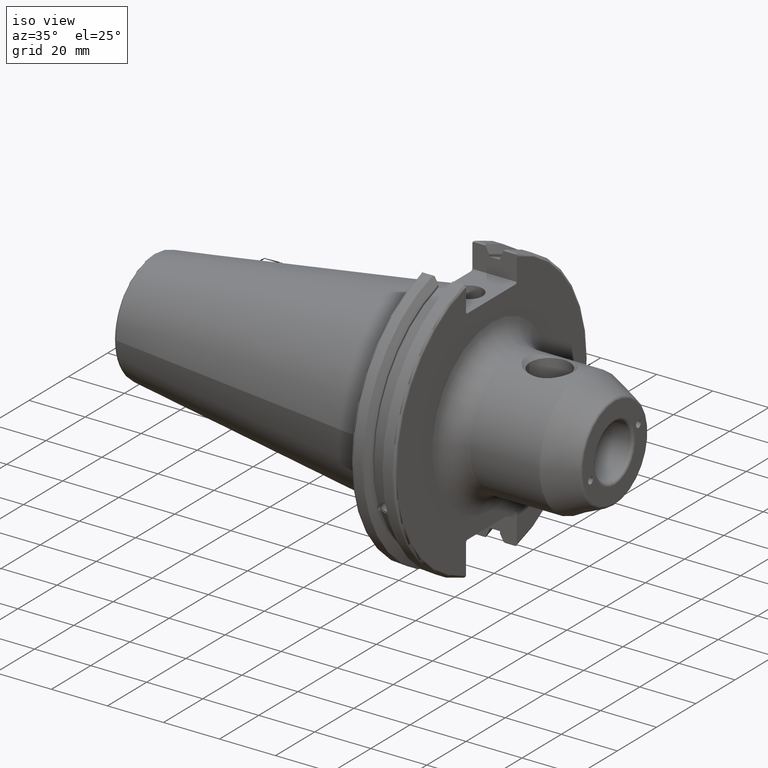
[diagram: clean part render]
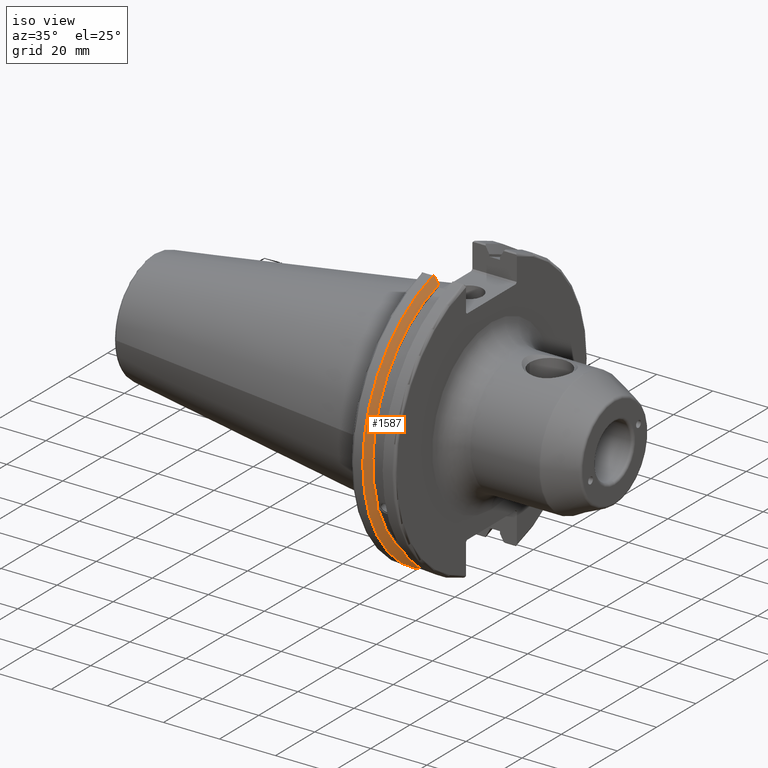
[diagram: same view with one face highlighted and labeled with its STEP entity id]
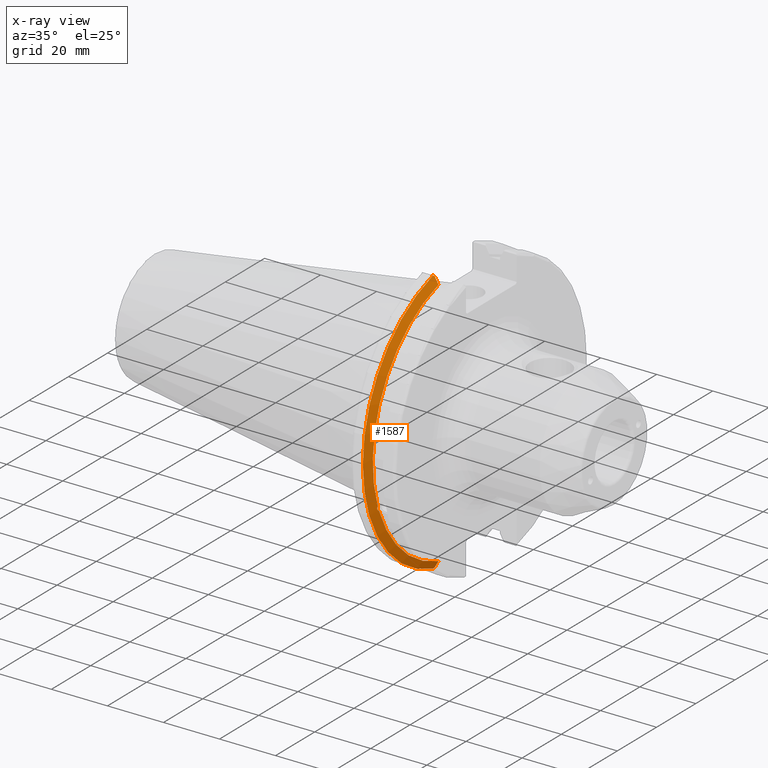
[diagram: x-ray of the same camera — body ghosted, the highlighted face saturated]
A machine part, iso view. The second image highlights one B-rep face of the part: STEP entity #1587.
The next image is the same camera in x-ray: the body ghosted, the highlighted face saturated — about 0% of this face is hidden behind the body in this view.
In plain terms, the highlighted conical surface has half-angle 60 deg.
Its self-contained STEP definition (entity closure, byte-faithful):
#24=(
BOUNDED_CURVE()
B_SPLINE_CURVE(2,(#3164,#3165,#3166),.UNSPECIFIED.,.F.,.F.)
B_SPLINE_CURVE_WITH_KNOTS((3,3),(0.,0.275823910674838),.UNSPECIFIED.)
CURVE()
GEOMETRIC_REPRESENTATION_ITEM()
RATIONAL_B_SPLINE_CURVE((1.,1.00038235573924,1.00012873636598))
REPRESENTATION_ITEM('')
);
#25=(
BOUNDED_CURVE()
B_SPLINE_CURVE(2,(#3176,#3177,#3178),.UNSPECIFIED.,.F.,.F.)
B_SPLINE_CURVE_WITH_KNOTS((3,3),(0.0558332664495948,0.331657177124508),
 .UNSPECIFIED.)
CURVE()
GEOMETRIC_REPRESENTATION_ITEM()
RATIONAL_B_SPLINE_CURVE((1.00012873636704,1.00038235574237,1.))
REPRESENTATION_ITEM('')
);
#26=(
BOUNDED_CURVE()
B_SPLINE_CURVE(2,(#3211,#3212,#3213),.UNSPECIFIED.,.F.,.F.)
B_SPLINE_CURVE_WITH_KNOTS((3,3),(0.,0.0648240472896605),.UNSPECIFIED.)
CURVE()
GEOMETRIC_REPRESENTATION_ITEM()
RATIONAL_B_SPLINE_CURVE((1.,1.00011477674868,1.00019140646002))
REPRESENTATION_ITEM('')
);
#27=(
BOUNDED_CURVE()
B_SPLINE_CURVE(2,(#3219,#3220,#3221),.UNSPECIFIED.,.F.,.F.)
B_SPLINE_CURVE_WITH_KNOTS((3,3),(0.325260944932437,0.390084992222203),
 .UNSPECIFIED.)
CURVE()
GEOMETRIC_REPRESENTATION_ITEM()
RATIONAL_B_SPLINE_CURVE((1.00019140645964,1.00011477674846,1.))
REPRESENTATION_ITEM('')
);
#51=CONICAL_SURFACE('',#1768,47.8172386482472,1.0471975511966);
#148=CIRCLE('',#1687,46.4219772964944);
#170=CIRCLE('',#1734,49.2125);
#182=CIRCLE('',#1769,46.4219772964944);
#263=FACE_OUTER_BOUND('',#371,.T.);
#371=EDGE_LOOP('',(#1435,#1436,#1437,#1438,#1439,#1440,#1441,#1442));
#404=B_SPLINE_CURVE_WITH_KNOTS('',3,(#2706,#2707,#2708,#2709,#2710,#2711,
#2712,#2713,#2714,#2715,#2716,#2717,#2718,#2719),.UNSPECIFIED.,.F.,.F.,
(4,2,2,2,2,2,4),(0.426712868358721,0.441644498666905,0.480313313223129,
0.518982127779353,0.557650942335576,0.5963197568918,0.611251387199984),
 .UNSPECIFIED.);
#677=VERTEX_POINT('',#2703);
#678=VERTEX_POINT('',#2705);
#695=VERTEX_POINT('',#2796);
#755=VERTEX_POINT('',#3161);
#756=VERTEX_POINT('',#3163);
#759=VERTEX_POINT('',#3175);
#763=VERTEX_POINT('',#3209);
#764=VERTEX_POINT('',#3215);
#853=EDGE_CURVE('',#678,#677,#404,.T.);
#876=EDGE_CURVE('',#678,#695,#148,.T.);
#956=EDGE_CURVE('',#756,#755,#24,.T.);
#962=EDGE_CURVE('',#759,#695,#25,.T.);
#970=EDGE_CURVE('',#763,#755,#26,.T.);
#972=EDGE_CURVE('',#763,#764,#170,.T.);
#973=EDGE_CURVE('',#759,#764,#27,.T.);
#1006=EDGE_CURVE('',#756,#677,#182,.T.);
#1435=ORIENTED_EDGE('',*,*,#853,.T.);
#1436=ORIENTED_EDGE('',*,*,#1006,.F.);
#1437=ORIENTED_EDGE('',*,*,#956,.T.);
#1438=ORIENTED_EDGE('',*,*,#970,.F.);
#1439=ORIENTED_EDGE('',*,*,#972,.T.);
#1440=ORIENTED_EDGE('',*,*,#973,.F.);
#1441=ORIENTED_EDGE('',*,*,#962,.T.);
#1442=ORIENTED_EDGE('',*,*,#876,.F.);
#1587=ADVANCED_FACE('',(#263),#51,.T.);
#1687=AXIS2_PLACEMENT_3D('',#2797,#1951,#1952);
#1734=AXIS2_PLACEMENT_3D('',#3217,#2088,#2089);
#1768=AXIS2_PLACEMENT_3D('',#3314,#2171,#2172);
#1769=AXIS2_PLACEMENT_3D('',#3315,#2173,#2174);
#1951=DIRECTION('center_axis',(1.,0.,0.));
#1952=DIRECTION('ref_axis',(0.,0.,-1.));
#2088=DIRECTION('center_axis',(1.,0.,0.));
#2089=DIRECTION('ref_axis',(0.,0.,-1.));
#2171=DIRECTION('center_axis',(-1.,0.,0.));
#2172=DIRECTION('ref_axis',(0.,-1.,-1.22464679914735E-16));
#2173=DIRECTION('center_axis',(1.,0.,0.));
#2174=DIRECTION('ref_axis',(0.,0.,-1.));
#2703=CARTESIAN_POINT('',(9.21200000000001,-43.9096390749305,-15.0646464421033));
#2705=CARTESIAN_POINT('',(9.21200000000001,-43.3201030900029,-16.6843832486479));
#2706=CARTESIAN_POINT('Ctrl Pts',(9.212,-43.3201030900029,-16.6843832486479));
#2707=CARTESIAN_POINT('Ctrl Pts',(9.19501843903392,-43.3613106941341,-16.6592273018006));
#2708=CARTESIAN_POINT('Ctrl Pts',(9.17898675403323,-43.4012416983557,-16.6326763251437));
#2709=CARTESIAN_POINT('Ctrl Pts',(9.12528673845038,-43.539103734322,-16.5325130832406));
#2710=CARTESIAN_POINT('Ctrl Pts',(9.08911610663556,-43.6406982153491,-16.4411807953719));
#2711=CARTESIAN_POINT('Ctrl Pts',(9.03980868251976,-43.8110833825827,-16.2291323464527));
#2712=CARTESIAN_POINT('Ctrl Pts',(9.027,-43.8794096049168,-16.10796730316));
#2713=CARTESIAN_POINT('Ctrl Pts',(9.027,-43.9675796948952,-15.8657219718732));
#2714=CARTESIAN_POINT('Ctrl Pts',(9.03980868251976,-43.9931221605126,-15.7289849146254));
#2715=CARTESIAN_POINT('Ctrl Pts',(9.08911610663556,-43.9989016655819,-15.4570249042867));
#2716=CARTESIAN_POINT('Ctrl Pts',(9.12528673845038,-43.9797830409458,-15.3217566390708));
#2717=CARTESIAN_POINT('Ctrl Pts',(9.17898675403323,-43.9385582852181,-15.1564111356409));
#2718=CARTESIAN_POINT('Ctrl Pts',(9.19501843903392,-43.9250360001461,-15.1104047527575));
#2719=CARTESIAN_POINT('Ctrl Pts',(9.212,-43.9096390749305,-15.0646464421033));
#2796=CARTESIAN_POINT('',(9.21200000000001,-12.95,-44.5791147973604));
#2797=CARTESIAN_POINT('Origin',(9.21200000000001,0.,0.));
#3161=CARTESIAN_POINT('',(7.87928960562423,-12.95,46.9780755322918));
#3163=CARTESIAN_POINT('',(9.21200000000001,-12.95,44.5791147973604));
#3164=CARTESIAN_POINT('Ctrl Pts',(9.21200000000001,-12.95,44.5791147973604));
#3165=CARTESIAN_POINT('Ctrl Pts',(8.56310449055921,-12.95,45.7494966802136));
#3166=CARTESIAN_POINT('Ctrl Pts',(7.87928960562423,-12.95,46.9780755322918));
#3175=CARTESIAN_POINT('',(7.87928960562424,-12.95,-46.9780755322918));
#3176=CARTESIAN_POINT('Ctrl Pts',(7.87928960562424,-12.95,-46.9780755322918));
#3177=CARTESIAN_POINT('Ctrl Pts',(8.56310449055802,-12.95,-45.7494966802158));
#3178=CARTESIAN_POINT('Ctrl Pts',(9.21200000000001,-12.95,-44.5791147973604));
#3209=CARTESIAN_POINT('',(7.60089096595127,-13.4317035994433,47.3440544806494));
#3211=CARTESIAN_POINT('Ctrl Pts',(7.60089096595127,-13.4317035994433,47.3440544806494));
#3212=CARTESIAN_POINT('Ctrl Pts',(7.74116896663826,-13.1896660169965,47.1601640966263));
#3213=CARTESIAN_POINT('Ctrl Pts',(7.87928960562423,-12.95,46.9780755322918));
#3215=CARTESIAN_POINT('',(7.60089096595127,-13.4317035994433,-47.3440544806494));
#3217=CARTESIAN_POINT('Origin',(7.60089096595127,0.,0.));
#3219=CARTESIAN_POINT('Ctrl Pts',(7.87928960562424,-12.95,-46.9780755322918));
#3220=CARTESIAN_POINT('Ctrl Pts',(7.7411689666382,-13.1896660169966,-47.1601640966264));
#3221=CARTESIAN_POINT('Ctrl Pts',(7.60089096595127,-13.4317035994433,-47.3440544806494));
#3314=CARTESIAN_POINT('Origin',(8.40644548297563,0.,0.));
#3315=CARTESIAN_POINT('Origin',(9.21200000000001,0.,0.));